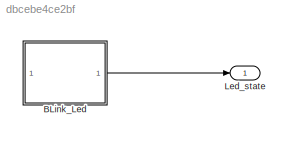
MODEL slx_dbcebe4ce2bf
KIND model
CONFIG AbsTol = auto
CONFIG EnableMultiTasking = off
CONFIG FixedStep = auto
CONFIG MaxStep = auto
CONFIG MinStep = auto
CONFIG RelTol = 1e-3
CONFIG SampleTimeConstraint = Unconstrained
CONFIG SolverName = VariableStepAuto
CONFIG StartTime = 0.0
CONFIG StopTime = 10.0
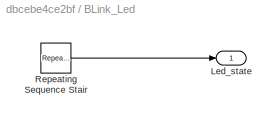
BLOCK [SubSystem] BLink_Led
BLOCK [Outport] BLink_Led/Led_state
BLOCK [Reference] BLink_Led/Repeating Sequence Stair  REF=simulink/Sources/Repeating
Sequence
Stair
  SourceBlock = simulink/Sources/Repeating\nSequence\nStair
  SourceType = Repeating Sequence Stair
BLOCK [Outport] Led_state
LINE BLink_Led/Repeating Sequence Stair:1 -> BLink_Led/Led_state:1
LINE BLink_Led:1 -> Led_state:1
